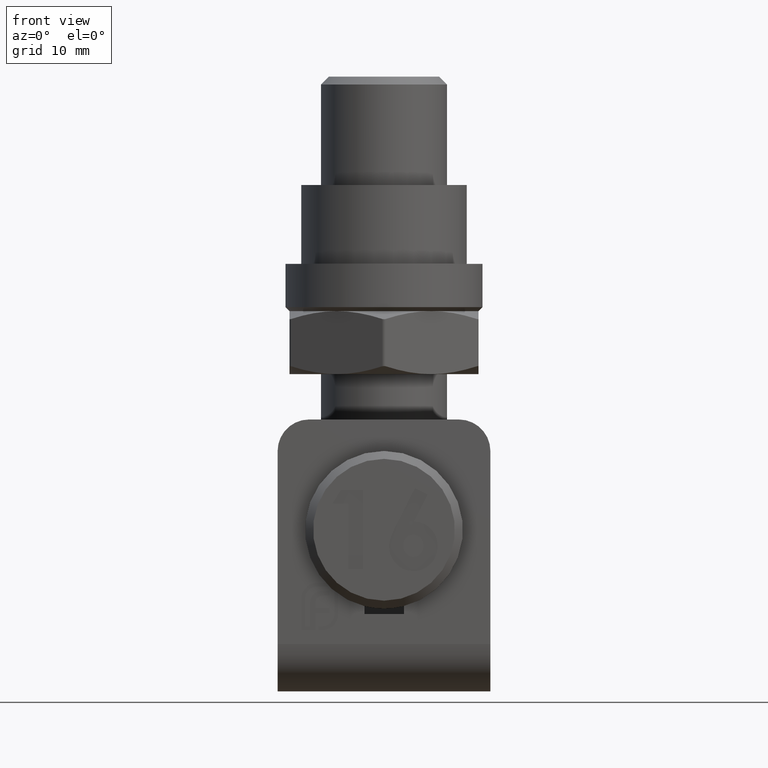
[diagram: clean part render]
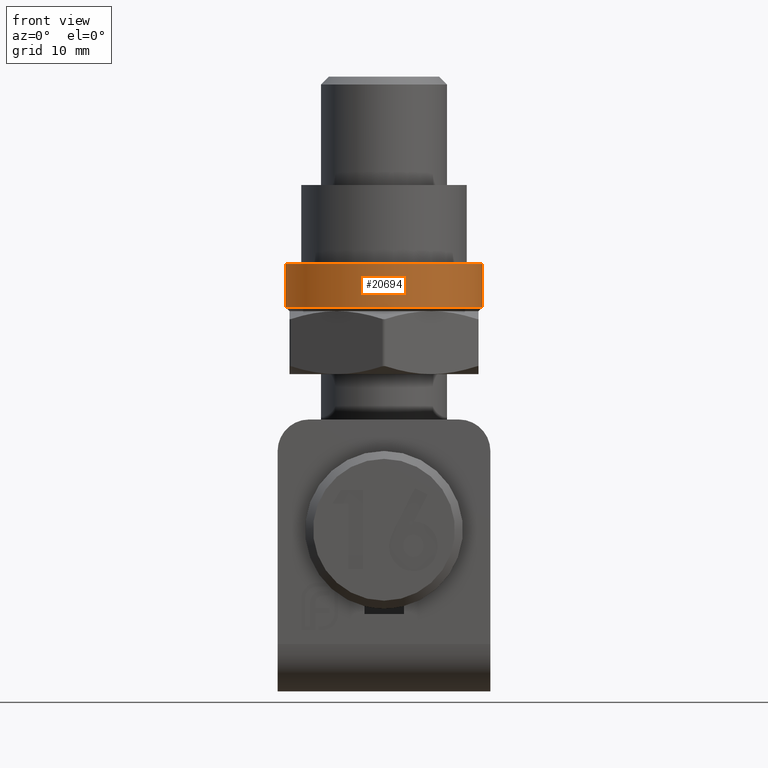
[diagram: same view with one face highlighted and labeled with its STEP entity id]
A machine part, front view. The second image highlights one B-rep face of the part: STEP entity #20694.
In plain terms, the highlighted cylindrical surface (bore or boss wall) has radius 12.5 mm, axis along (0, 0, 1).
Its self-contained STEP definition (entity closure, byte-faithful):
#628 = ORIENTED_EDGE ( 'NONE', *, *, #2589, .T. ) ;
#2014 = EDGE_CURVE ( 'NONE', #14325, #14325, #15812, .T. ) ;
#2589 = EDGE_CURVE ( 'NONE', #18595, #18595, #5955, .T. ) ;
#3108 = CARTESIAN_POINT ( 'NONE',  ( 0.000000000000000000, 0.000000000000000000, -2.000000000000001776 ) ) ;
#5955 = CIRCLE ( 'NONE', #11767, 12.50000000000000000 ) ;
#6925 = EDGE_LOOP ( 'NONE', ( #628 ) ) ;
#7773 = DIRECTION ( 'NONE',  ( -0.000000000000000000, -0.000000000000000000, 1.000000000000000000 ) ) ;
#8262 = FACE_OUTER_BOUND ( 'NONE', #14546, .T. ) ;
#10232 = AXIS2_PLACEMENT_3D ( 'NONE', #3108, #14954, #16717 ) ;
#11697 = CARTESIAN_POINT ( 'NONE',  ( 0.000000000000000000, 0.000000000000000000, 8.000000000000007105 ) ) ;
#11767 = AXIS2_PLACEMENT_3D ( 'NONE', #19656, #7773, #14752 ) ;
#12086 = CARTESIAN_POINT ( 'NONE',  ( 12.50000000000000000, 0.000000000000000000, -2.000000000000001776 ) ) ;
#14325 = VERTEX_POINT ( 'NONE', #12086 ) ;
#14546 = EDGE_LOOP ( 'NONE', ( #20023 ) ) ;
#14752 = DIRECTION ( 'NONE',  ( 1.000000000000000000, 0.000000000000000000, 0.000000000000000000 ) ) ;
#14954 = DIRECTION ( 'NONE',  ( -0.000000000000000000, -0.000000000000000000, 1.000000000000000000 ) ) ;
#15305 = CARTESIAN_POINT ( 'NONE',  ( 12.50000000000000000, 0.000000000000000000, -7.500000000000007105 ) ) ;
#15728 = FACE_OUTER_BOUND ( 'NONE', #6925, .T. ) ;
#15812 = CIRCLE ( 'NONE', #10232, 12.50000000000000000 ) ;
#16717 = DIRECTION ( 'NONE',  ( 1.000000000000000000, 0.000000000000000000, 0.000000000000000000 ) ) ;
#18360 = DIRECTION ( 'NONE',  ( -0.000000000000000000, -0.000000000000000000, 1.000000000000000000 ) ) ;
#18495 = DIRECTION ( 'NONE',  ( 1.000000000000000000, 0.000000000000000000, 0.000000000000000000 ) ) ;
#18595 = VERTEX_POINT ( 'NONE', #15305 ) ;
#18635 = CYLINDRICAL_SURFACE ( 'NONE', #18732, 12.50000000000000000 ) ;
#18732 = AXIS2_PLACEMENT_3D ( 'NONE', #11697, #18360, #18495 ) ;
#19656 = CARTESIAN_POINT ( 'NONE',  ( 0.000000000000000000, 0.000000000000000000, -7.500000000000007105 ) ) ;
#20023 = ORIENTED_EDGE ( 'NONE', *, *, #2014, .F. ) ;
#20694 = ADVANCED_FACE ( 'NONE', ( #15728, #8262 ), #18635, .T. ) ;